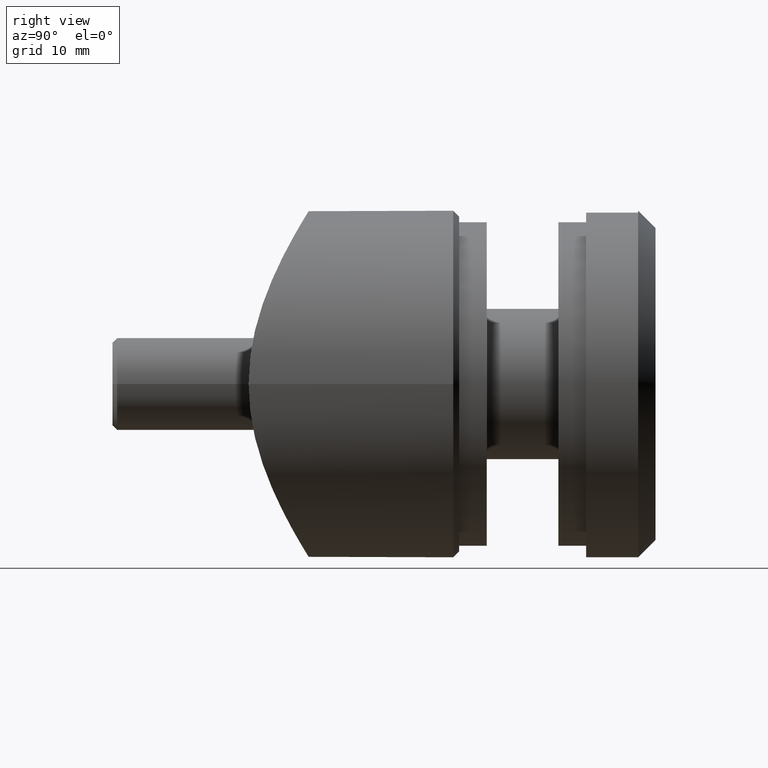
[diagram: clean part render]
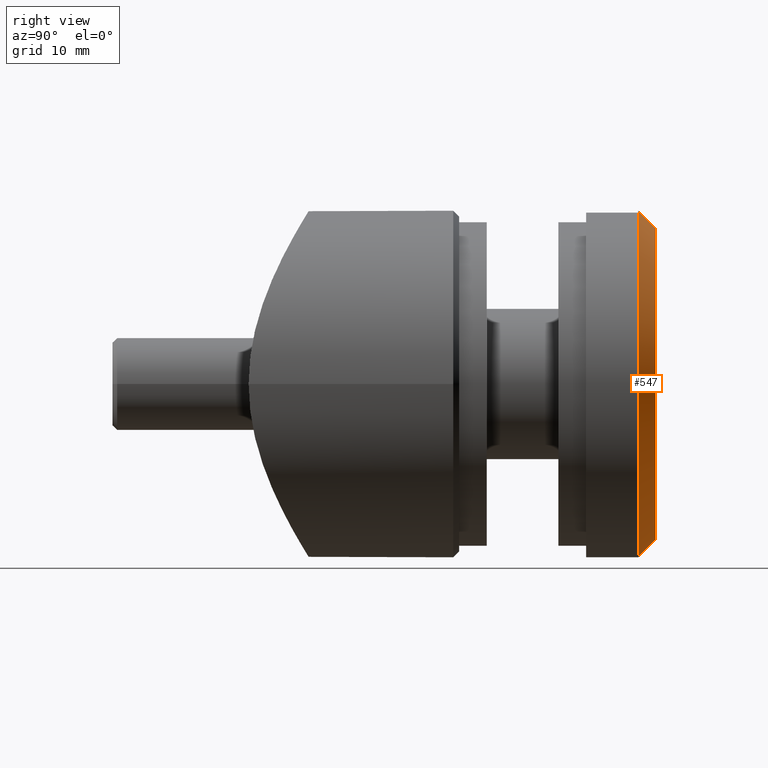
[diagram: same view with one face highlighted and labeled with its STEP entity id]
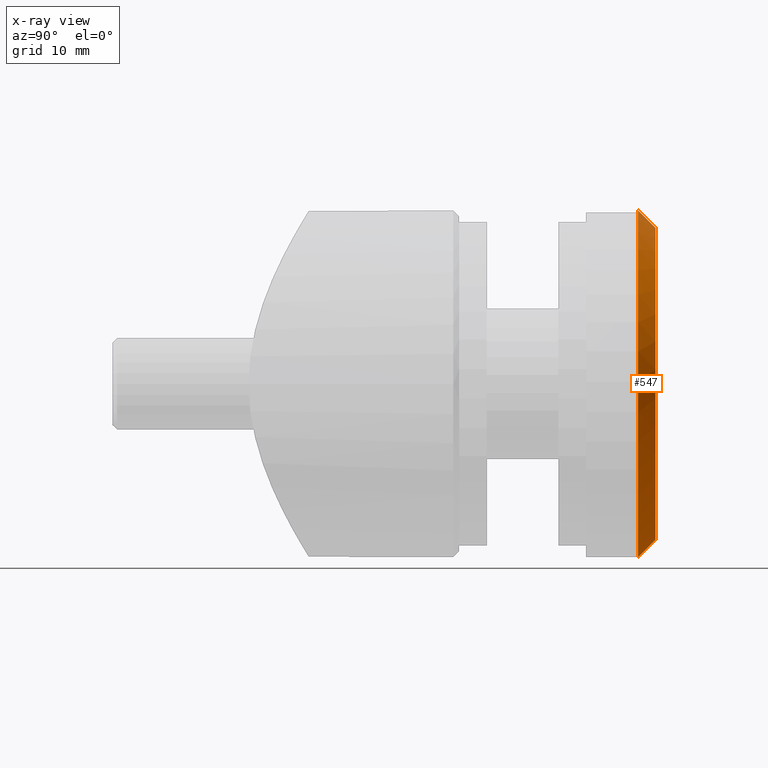
[diagram: x-ray of the same camera — body ghosted, the highlighted face saturated]
A machine part, right view. The second image highlights one B-rep face of the part: STEP entity #547.
The next image is the same camera in x-ray: the body ghosted, the highlighted face saturated — about 0% of this face is hidden behind the body in this view.
In plain terms, the highlighted conical surface has half-angle 45 deg.
Its self-contained STEP definition (entity closure, byte-faithful):
#353 = EDGE_CURVE ( 'NONE', #7812, #3236, #16262, .T. ) ;
#547 = ADVANCED_FACE ( 'NONE', ( #15251 ), #7956, .T. ) ;
#586 = CARTESIAN_POINT ( 'NONE',  ( 1.636701471536427784E-15, 11.00000000000003730, 13.50000000000000000 ) ) ;
#877 = DIRECTION ( 'NONE',  ( 0.000000000000000000, 0.000000000000000000, -1.000000000000000000 ) ) ;
#967 = DIRECTION ( 'NONE',  ( 0.000000000000000000, -0.7071067811865471286, -0.7071067811865479058 ) ) ;
#1557 = EDGE_CURVE ( 'NONE', #3236, #5686, #16451, .T. ) ;
#2447 = LINE ( 'NONE', #7718, #10534 ) ;
#2748 = DIRECTION ( 'NONE',  ( 0.000000000000000000, 0.000000000000000000, -1.000000000000000000 ) ) ;
#2957 = EDGE_CURVE ( 'NONE', #12799, #10442, #10425, .T. ) ;
#3180 = VECTOR ( 'NONE', #7450, 1000.000000000000000 ) ;
#3236 = VERTEX_POINT ( 'NONE', #586 ) ;
#3764 = DIRECTION ( 'NONE',  ( 0.000000000000000000, -1.000000000000000000, 0.000000000000000000 ) ) ;
#4416 = CARTESIAN_POINT ( 'NONE',  ( -1.084202172485504434E-16, 9.500000000000035527, 0.000000000000000000 ) ) ;
#4931 = DIRECTION ( 'NONE',  ( 0.000000000000000000, -1.000000000000000000, 0.000000000000000000 ) ) ;
#5232 = CARTESIAN_POINT ( 'NONE',  ( -1.084202172485504434E-16, 9.500000000000035527, 0.000000000000000000 ) ) ;
#5512 = AXIS2_PLACEMENT_3D ( 'NONE', #15970, #12124, #2748 ) ;
#5669 = DIRECTION ( 'NONE',  ( 0.000000000000000000, 0.000000000000000000, -1.000000000000000000 ) ) ;
#5686 = VERTEX_POINT ( 'NONE', #8463 ) ;
#6459 = ORIENTED_EDGE ( 'NONE', *, *, #11503, .F. ) ;
#6582 = EDGE_LOOP ( 'NONE', ( #12826, #14419, #6459, #10940, #11204 ) ) ;
#7450 = DIRECTION ( 'NONE',  ( 8.659560562354937789E-17, -0.7071067811865471286, 0.7071067811865479058 ) ) ;
#7718 = CARTESIAN_POINT ( 'NONE',  ( -1.084202172485504434E-16, 9.500000000000035527, -15.00000000000000178 ) ) ;
#7812 = VERTEX_POINT ( 'NONE', #15582 ) ;
#7956 = CONICAL_SURFACE ( 'NONE', #12432, 15.00000000000000178, 0.7853981633974488341 ) ;
#8463 = CARTESIAN_POINT ( 'NONE',  ( 1.728549981472479540E-15, 9.500000000000035527, 15.00000000000000178 ) ) ;
#8729 = CARTESIAN_POINT ( 'NONE',  ( -1.084202172485504434E-16, 11.00000000000003730, 0.000000000000000000 ) ) ;
#8965 = CARTESIAN_POINT ( 'NONE',  ( 2.250000000000006217, 9.500000000000035527, 14.83028994996389294 ) ) ;
#9149 = DIRECTION ( 'NONE',  ( 0.000000000000000000, 0.000000000000000000, -1.000000000000000000 ) ) ;
#10425 = CIRCLE ( 'NONE', #5512, 15.00000000000000178 ) ;
#10442 = VERTEX_POINT ( 'NONE', #8965 ) ;
#10534 = VECTOR ( 'NONE', #967, 1000.000000000000000 ) ;
#10940 = ORIENTED_EDGE ( 'NONE', *, *, #2957, .F. ) ;
#11018 = CIRCLE ( 'NONE', #13589, 15.00000000000000178 ) ;
#11204 = ORIENTED_EDGE ( 'NONE', *, *, #15893, .F. ) ;
#11503 = EDGE_CURVE ( 'NONE', #10442, #5686, #11018, .T. ) ;
#12124 = DIRECTION ( 'NONE',  ( 0.000000000000000000, -1.000000000000000000, 0.000000000000000000 ) ) ;
#12432 = AXIS2_PLACEMENT_3D ( 'NONE', #5232, #3764, #9149 ) ;
#12799 = VERTEX_POINT ( 'NONE', #16317 ) ;
#12826 = ORIENTED_EDGE ( 'NONE', *, *, #353, .T. ) ;
#13589 = AXIS2_PLACEMENT_3D ( 'NONE', #4416, #13635, #5669 ) ;
#13635 = DIRECTION ( 'NONE',  ( 0.000000000000000000, -1.000000000000000000, 0.000000000000000000 ) ) ;
#14419 = ORIENTED_EDGE ( 'NONE', *, *, #1557, .T. ) ;
#15251 = FACE_OUTER_BOUND ( 'NONE', #6582, .T. ) ;
#15582 = CARTESIAN_POINT ( 'NONE',  ( -1.084202172485504434E-16, 11.00000000000003730, -13.50000000000000000 ) ) ;
#15893 = EDGE_CURVE ( 'NONE', #7812, #12799, #2447, .T. ) ;
#15970 = CARTESIAN_POINT ( 'NONE',  ( -1.084202172485504434E-16, 9.500000000000035527, 0.000000000000000000 ) ) ;
#16262 = CIRCLE ( 'NONE', #16747, 13.50000000000000000 ) ;
#16317 = CARTESIAN_POINT ( 'NONE',  ( 2.407412430484044816E-32, 9.500000000000035527, -15.00000000000000355 ) ) ;
#16451 = LINE ( 'NONE', #16782, #3180 ) ;
#16747 = AXIS2_PLACEMENT_3D ( 'NONE', #8729, #4931, #877 ) ;
#16782 = CARTESIAN_POINT ( 'NONE',  ( 1.728549981472479540E-15, 9.500000000000035527, 15.00000000000000178 ) ) ;